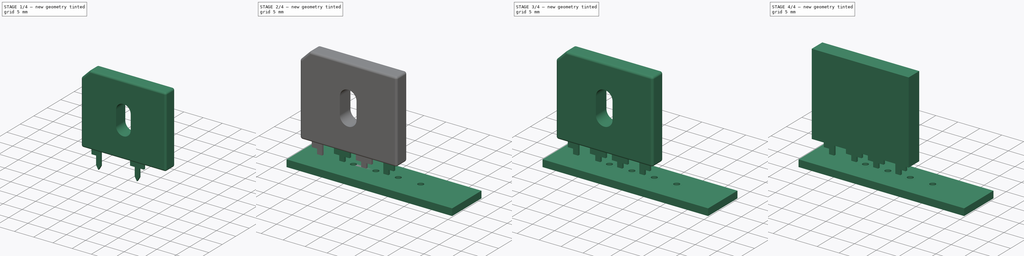
[diagram: build sequence overview — one tinted view per stage of 4, left to right]
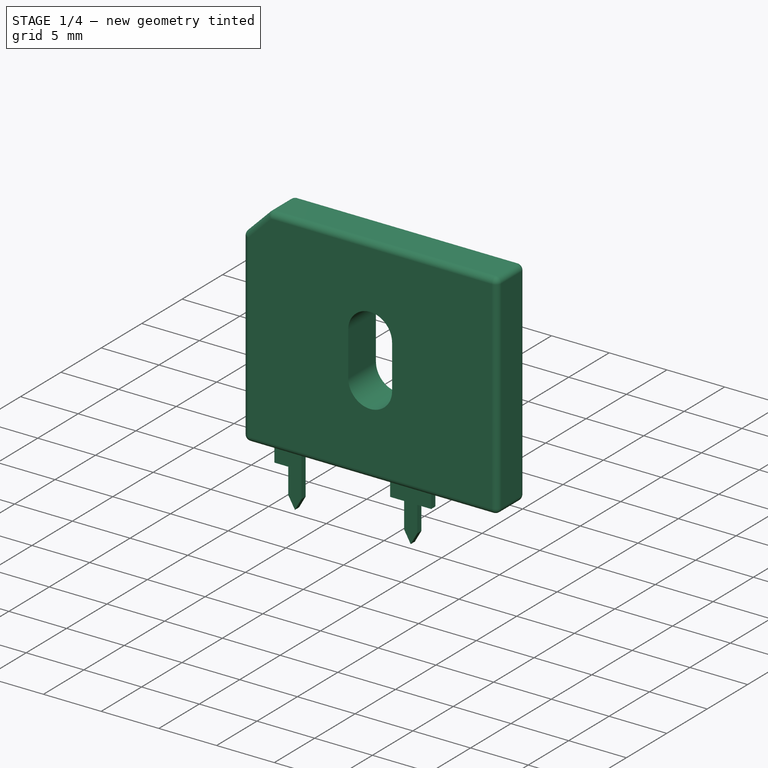
[diagram: stage 1 of 4 — iso view after this stage's code; geometry added in this stage tinted green]
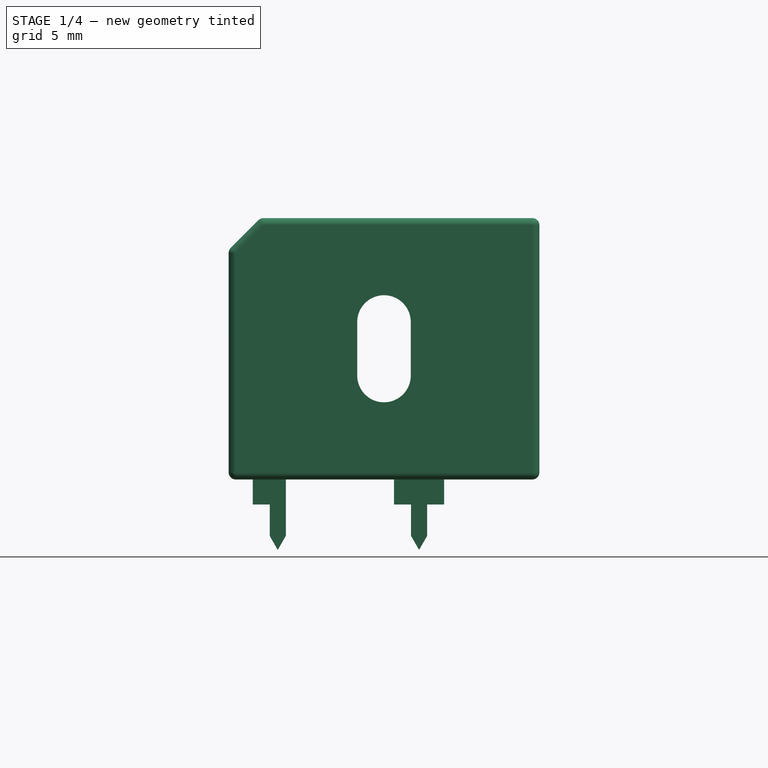
[diagram: stage 1 of 4 — front view after this stage's code; geometry added in this stage tinted green]
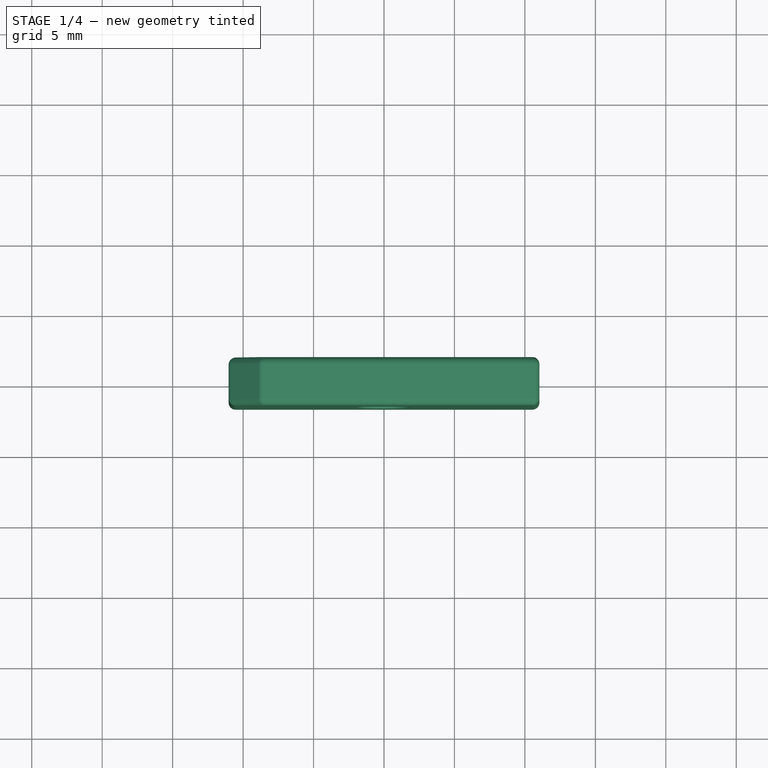
[diagram: stage 1 of 4 — top view after this stage's code; geometry added in this stage tinted green]
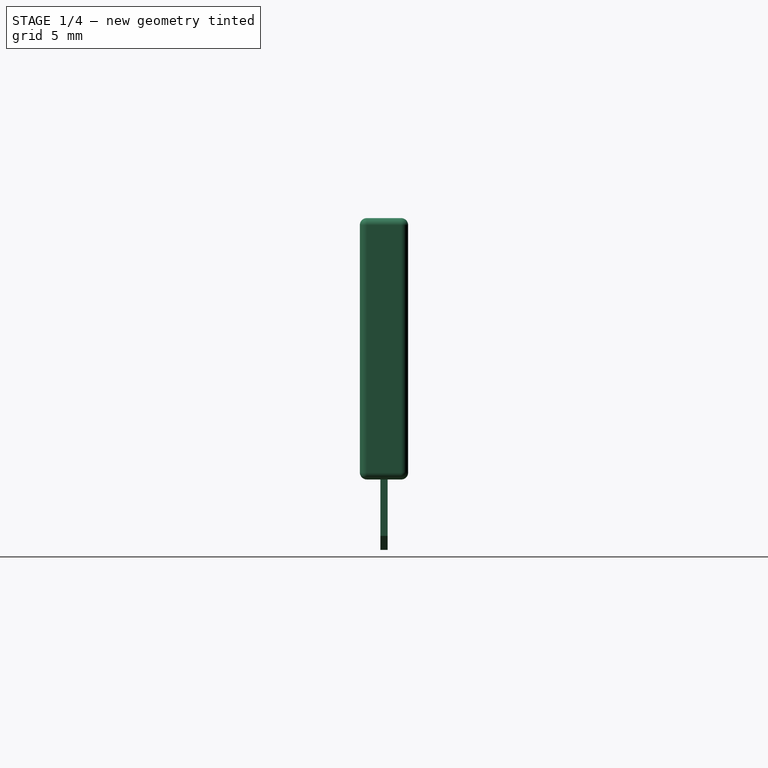
[diagram: stage 1 of 4 — right view after this stage's code; geometry added in this stage tinted green]
FCSTD DOCUMENT  (FreeCAD 0.16R6710 (Git))
Label: Diode_Bridge_18_5x5_5
License: All rights reserved
LicenseURL: http://en.wikipedia.org/wiki/All_rights_reserved
objects: Sketcher::SketchObject×5, Part::FeaturePython×5, PartDesign::Body×3, PartDesign::Pad×3, Part::Mirroring×2, PartDesign::Pocket×2, PartDesign::Fillet×2, App::DocumentObjectGroup×1, Part::MultiFuse×1, Part::Feature×1
note: 29 computed .brp shape members not serialized (recipe doc carries the construction recipe); baked Part::Feature solids carry a one-line shape summary decoded from their .brp

FEATURE [PartDesign::Body] Body
FEATURE [Sketcher::SketchObject] Sketch
  Placement = pos=(0,0,0) rot=(1,0,0;1.5708rad)
  sketch-geometry (9):
    g0: LineSegment StartX=8.1125 StartY=-1.1125 StartZ=0 EndX=8.1125 EndY=1.1125 EndZ=0
    g1: LineSegment StartX=8.1125 StartY=1.1125 StartZ=0 EndX=9.3175 EndY=1.1125 EndZ=0
    g2: LineSegment StartX=9.3175 StartY=1.1125 StartZ=0 EndX=9.3175 EndY=2.8875 EndZ=0
    g3: LineSegment StartX=9.3175 StartY=2.8875 StartZ=0 EndX=6.9675 EndY=2.8875 EndZ=0
    g4: LineSegment StartX=6.9675 StartY=2.8875 StartZ=0 EndX=6.9675 EndY=-1.1125 EndZ=0
    g5: LineSegment StartX=6.9675 StartY=-1.1125 StartZ=0 EndX=7.54 EndY=-2.1125 EndZ=0
    g6: LineSegment StartX=7.54 StartY=-2.1125 StartZ=0 EndX=8.1125 EndY=-1.1125 EndZ=0
    g7: LineSegment StartX=6.9675 StartY=-1.1125 StartZ=0 EndX=8.1125 EndY=-1.1125 EndZ=0
    g8: GeomPoint X=8.1125 Y=0 Z=0
  constraints (25):
    c: Vertical(g0)
    c: Coincident(g0,g1)
    c: Horizontal(g1)
    c: Coincident(g1,g2)
    c: Vertical(g2)
    c: Coincident(g2,g3)
    c: Horizontal(g3)
    c: Coincident(g3,g4)
    c: Vertical(g4)
    c: Coincident(g4,g5)
    c: Coincident(g6,g0)
    c: Horizontal(g7)
    c: DistanceX(g7,g7) = 1.145
    c: Equal(g5,g6)
    c: Coincident(g7,g0)
    c: DistanceY(g5,g4) = 1
    c: DistanceX(g3,g3) = 2.35
    c: Coincident(g4,g7)
    c: DistanceY(g2,g2) = 1.775
    c: DistanceY(g4,g4) = 4
    c: PointOnObject(g8,g0)
    c: Symmetric(g0,g0,g8)
    c: PointOnObject(g8,g-1)
    c: DistanceX(g-1,g5) = 7.54
    c: Coincident(g5,g6)
FEATURE [PartDesign::Body] Body001
FEATURE [PartDesign::Pad] Pad
  Length = 0.51
  Length2 = 100
  Midplane = true
  Placement = pos=(0,0,0) rot=(1,0,0;1.5708rad)
  Type = 0
FEATURE [Sketcher::SketchObject] Sketch001
  ExternalGeometry = -> [Sketch,Pad]
  Placement = pos=(0,0,0) rot=(1,0,0;1.5708rad)
  sketch-geometry (11):
    g0: LineSegment StartX=4.2675 StartY=1.1125 StartZ=0 EndX=4.2675 EndY=2.8875 EndZ=0
    g1: LineSegment StartX=4.2675 StartY=2.8875 StartZ=0 EndX=0.7125 EndY=2.8875 EndZ=0
    g2: LineSegment StartX=0.7125 StartY=2.8875 StartZ=0 EndX=0.7125 EndY=1.1125 EndZ=0
    g3: LineSegment StartX=0.7125 StartY=1.1125 StartZ=0 EndX=1.9175 EndY=1.1125 EndZ=0
    g4: LineSegment StartX=1.9175 StartY=1.1125 StartZ=0 EndX=1.9175 EndY=-1.1125 EndZ=0
    g5: LineSegment StartX=3.0625 StartY=-1.1125 StartZ=0 EndX=3.0625 EndY=1.1125 EndZ=0
    g6: LineSegment StartX=3.0625 StartY=1.1125 StartZ=0 EndX=4.2675 EndY=1.1125 EndZ=0
    g7: LineSegment StartX=1.9175 StartY=-1.1125 StartZ=0 EndX=2.49 EndY=-2.1125 EndZ=0
    g8: LineSegment StartX=2.49 StartY=-2.1125 StartZ=0 EndX=3.0625 EndY=-1.1125 EndZ=0
    g9: LineSegment StartX=1.9175 StartY=-1.1125 StartZ=0 EndX=3.0625 EndY=-1.1125 EndZ=0
    g10: LineSegment [constr] StartX=2.49 StartY=-2.1125 StartZ=0 EndX=7.54 EndY=-2.1125 EndZ=0
  constraints (31):
    c: Vertical(g0)
    c: Coincident(g0,g1)
    c: Coincident(g1,g2)
    c: Vertical(g2)
    c: Coincident(g2,g3)
    c: Coincident(g3,g4)
    c: Vertical(g4)
    c: Equal(g2,g0)
    c: Horizontal(g3)
    c: Horizontal(g1)
    c: Vertical(g5)
    c: Coincident(g5,g6)
    c: Coincident(g6,g0)
    c: Horizontal(g6)
    c: Coincident(g4,g7)
    c: Coincident(g7,g8)
    c: Coincident(g8,g5)
    c: Equal(g-8,g6)
    c: Equal(g-9,g0)
    c: Equal(g6,g3)
    c: Equal(g5,g-5)
    c: Equal(g5,g4)
    c: Equal(g-7,g8)
    c: Equal(g8,g7)
    c: Coincident(g9,g4)
    c: Coincident(g9,g5)
    c: Equal(g9,g-6)
    c: Coincident(g10,g7)
    c: Coincident(g10,g-7)
    c: DistanceX(g10,g10) = 5.05
    c: Horizontal(g10)
FEATURE [PartDesign::Pad] Pad001
  Length = 0.51
  Length2 = 100
  Midplane = true
  Placement = pos=(0,0,0) rot=(1,0,0;1.5708rad)
  Type = 0
FEATURE [Part::Mirroring] Part__Mirroring001  label="Pad (Mirror #2)"
  Base = (0,0,0)
  Normal = (1,0,0)
  Source = -> Pad
FEATURE [Sketcher::SketchObject] Sketch004
  ExternalGeometry = -> [Fillet001]
  Placement = pos=(0,-1.715,0) rot=(1,0,0;1.5708rad)
  sketch-geometry (6):
    g0: ArcOfCircle CenterX=0 CenterY=14.0625 CenterZ=0 NormalX=0 NormalY=0 NormalZ=1 Radius=1.9 StartAngle=0 EndAngle=3.14159
    g1: ArcOfCircle CenterX=0 CenterY=10.2625 CenterZ=0 NormalX=0 NormalY=0 NormalZ=1 Radius=1.9 StartAngle=3.14159 EndAngle=6.28319
    g2: LineSegment StartX=-1.9 StartY=14.0625 StartZ=0 EndX=-1.9 EndY=10.2625 EndZ=0
    g3: LineSegment StartX=1.9 StartY=14.0625 StartZ=0 EndX=1.9 EndY=10.2625 EndZ=0
    g4: LineSegment [constr] StartX=0 StartY=14.0625 StartZ=0 EndX=0 EndY=10.2625 EndZ=0
    g5: LineSegment [constr] StartX=0 StartY=12.1625 StartZ=0 EndX=10.525 EndY=12.1625 EndZ=0
  constraints (16):
    c: Tangent(g0,g3) = 1.5708
    c: Tangent(g0,g2) = -1.5708
    c: Tangent(g2,g1) = -1.5708
    c: Tangent(g3,g1) = 1.5708
    c: Vertical(g2)
    c: Equal(g0,g1)
    c: Radius(g1) = 1.9
    c: DistanceY(g1,g0) = 3.8
    c: PointOnObject(g0,g-2)
    c: Coincident(g4,g0)
    c: Coincident(g4,g1)
    c: PointOnObject(g5,g4)
    c: PointOnObject(g5,g-3)
    c: Horizontal(g5)
    c: Symmetric(g-3,g-3,g5)
    c: Symmetric(g4,g4,g5)
FEATURE [PartDesign::Pocket] Pocket001
  Length = 5
  Placement = pos=(0,0,0) rot=(1,0,0;1.5708rad)
  Type = 1
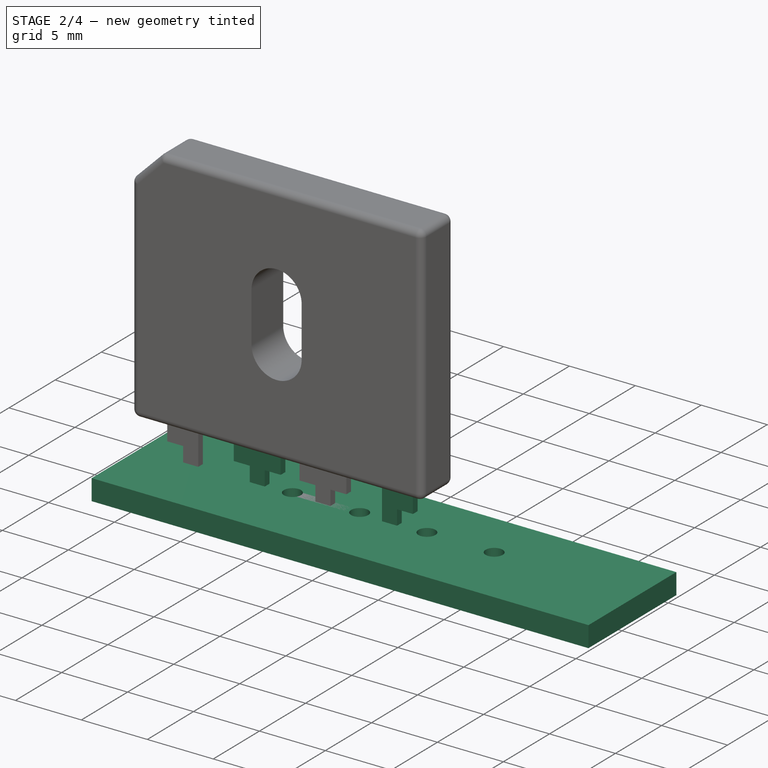
[diagram: stage 2 of 4 — iso view after this stage's code; geometry added in this stage tinted green]
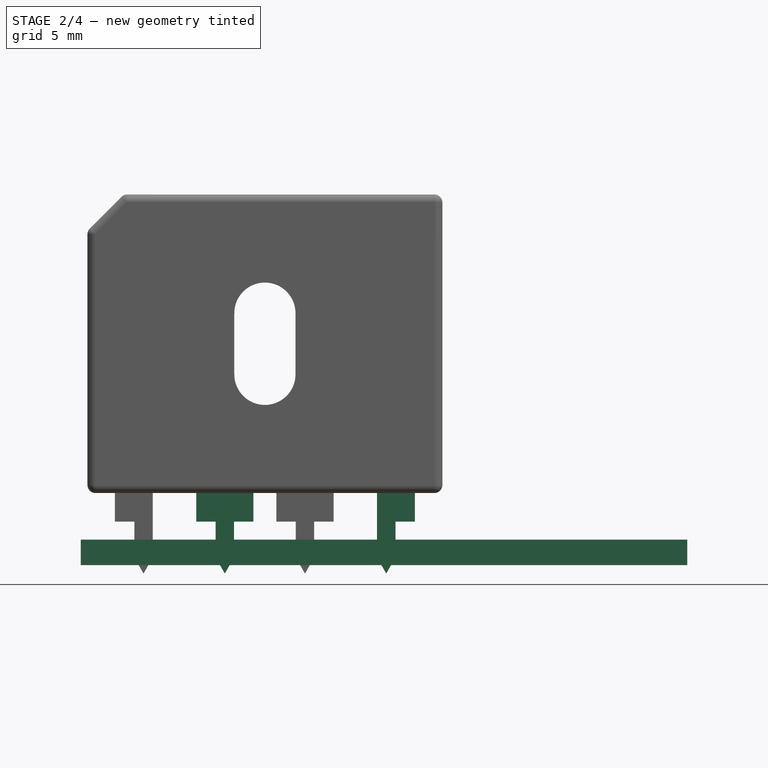
[diagram: stage 2 of 4 — front view after this stage's code; geometry added in this stage tinted green]
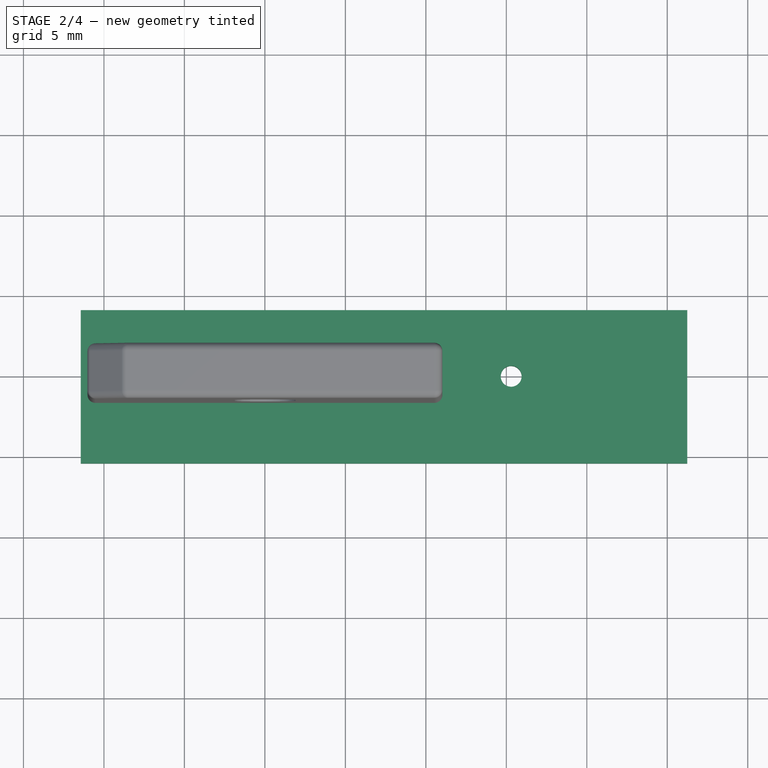
[diagram: stage 2 of 4 — top view after this stage's code; geometry added in this stage tinted green]
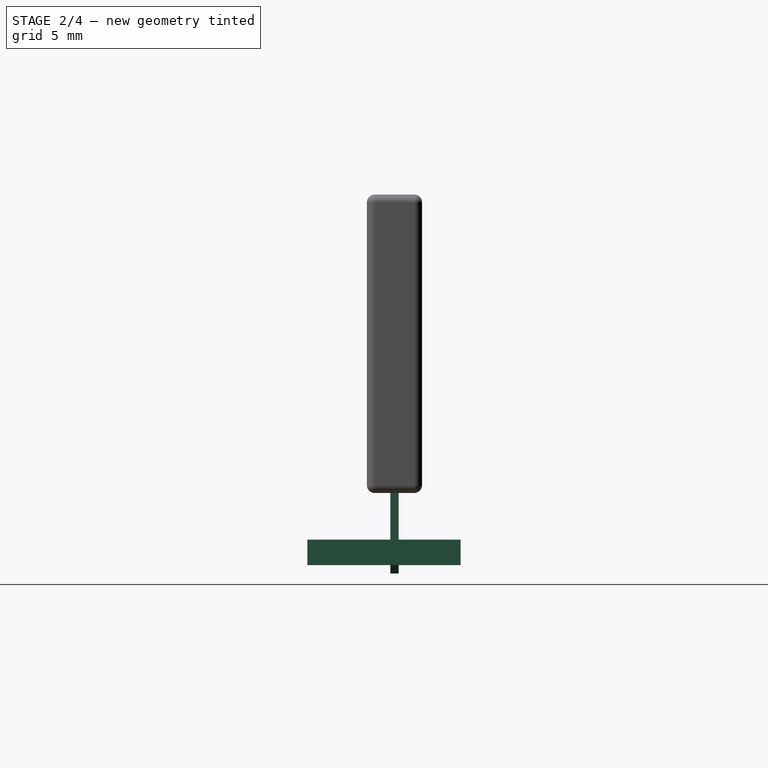
[diagram: stage 2 of 4 — right view after this stage's code; geometry added in this stage tinted green]
FEATURE [Part::Mirroring] Part__Mirroring  label="Pad001 (Mirror #1)"
  Base = (0,0,0)
  Normal = (1,0,-1.19209e-07)
  Source = -> Pad001
FEATURE [Part::FeaturePython] newPCB  label="Pcb"  # a2plus imported part (geometry in sourceFile) (typed FeaturePython)
  fixedPosition = true
FEATURE [App::DocumentObjectGroup] Diode_Bridge_18_5x5_5_fp
  Group = -> [Filk_lines,TopPads,BotPads,THPs,newPCB]
FEATURE [Part::MultiFuse] Pad_mp_cp  label="Pad_fd"
  Shapes = -> [Pad,Part__Mirroring001,Part__Mirroring,Pocket001,Pad001]
FEATURE [Part::Feature] Shape001  label="Diode_Bridge_18_5x5_5"
  shape: bbox 22.05 x 3.43 x 23.55 mm, 72 faces (baked)
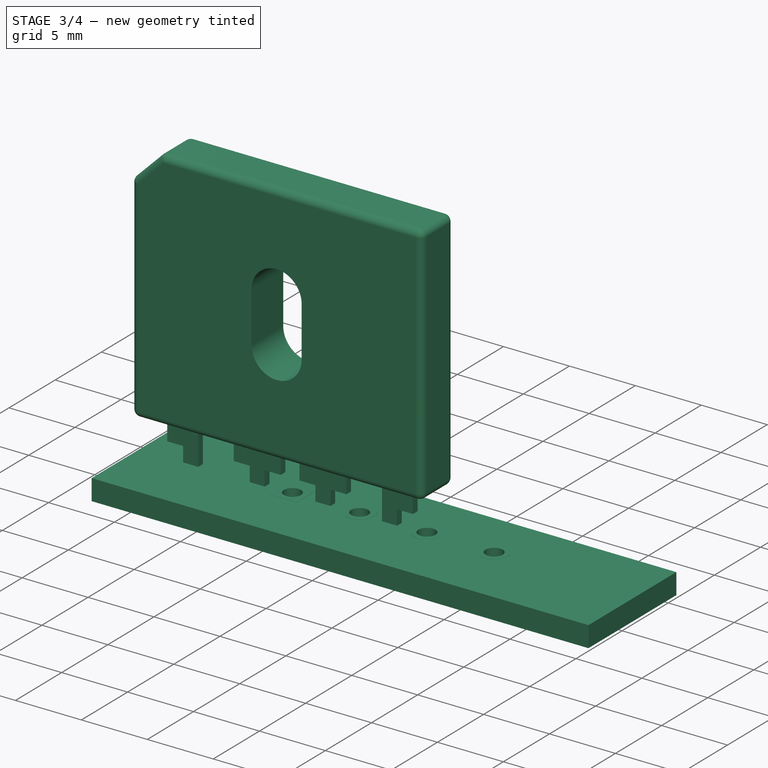
[diagram: stage 3 of 4 — iso view after this stage's code; geometry added in this stage tinted green]
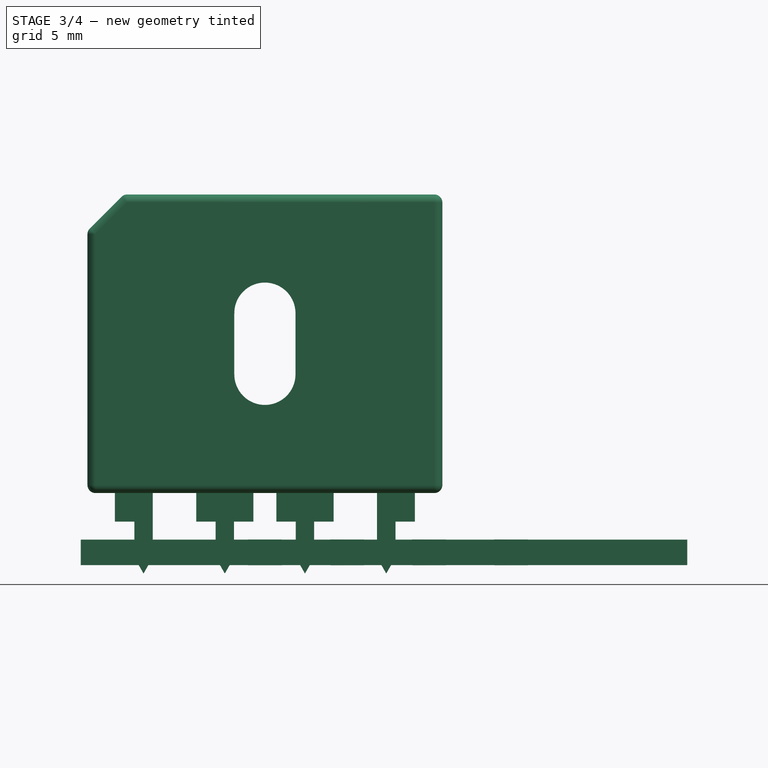
[diagram: stage 3 of 4 — front view after this stage's code; geometry added in this stage tinted green]
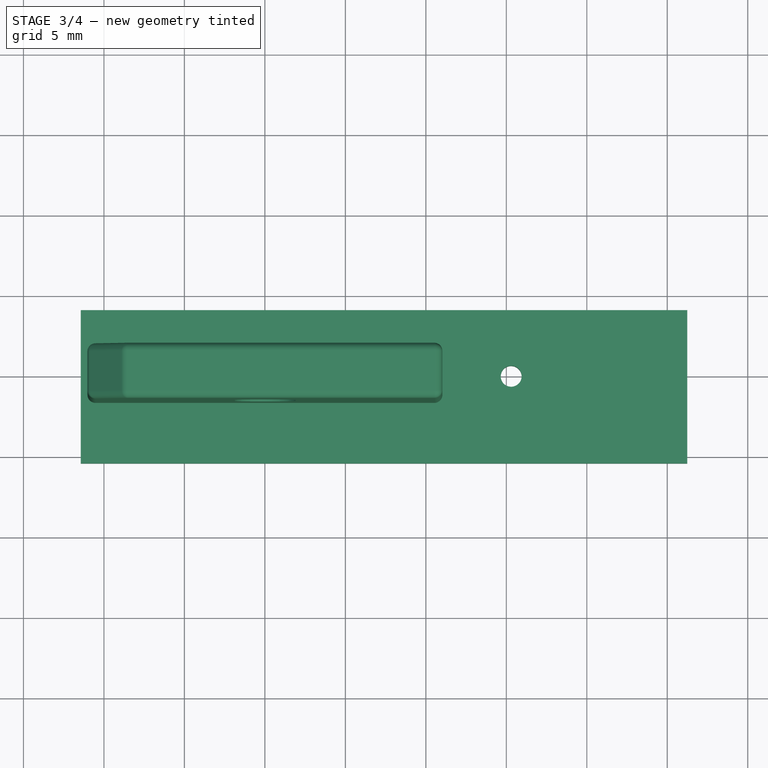
[diagram: stage 3 of 4 — top view after this stage's code; geometry added in this stage tinted green]
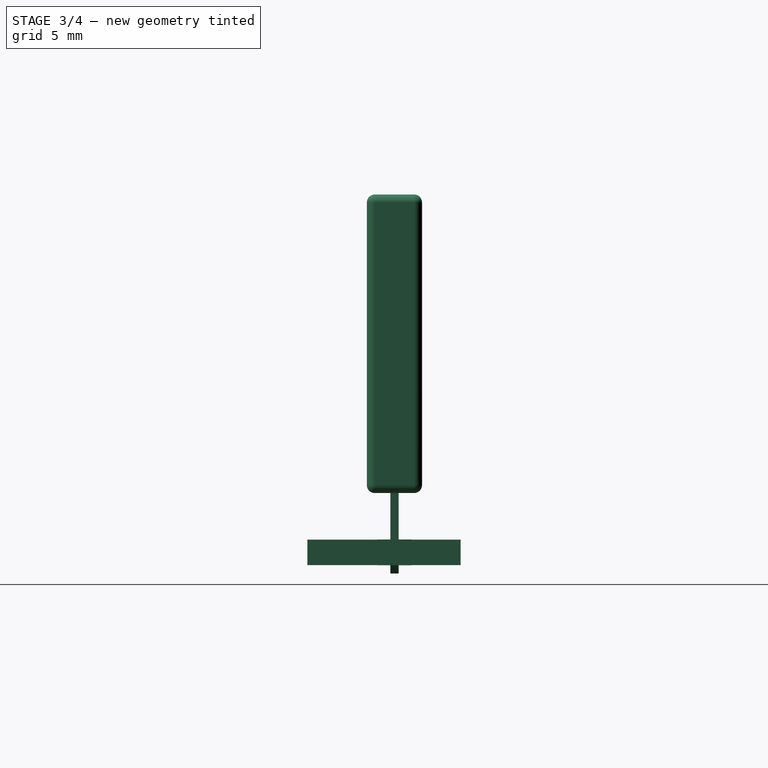
[diagram: stage 3 of 4 — right view after this stage's code; geometry added in this stage tinted green]
FEATURE [Part::FeaturePython] Filk_lines  label="FrontSilk"  # a2plus imported part (geometry in sourceFile) (typed FeaturePython)
  fixedPosition = true
FEATURE [Part::FeaturePython] TopPads  # a2plus imported part (geometry in sourceFile) (typed FeaturePython)
  fixedPosition = true
FEATURE [Part::FeaturePython] BotPads  # a2plus imported part (geometry in sourceFile) (typed FeaturePython)
  fixedPosition = true
FEATURE [Part::FeaturePython] THPs  label="PTHs"  # a2plus imported part (geometry in sourceFile) (typed FeaturePython)
  fixedPosition = true
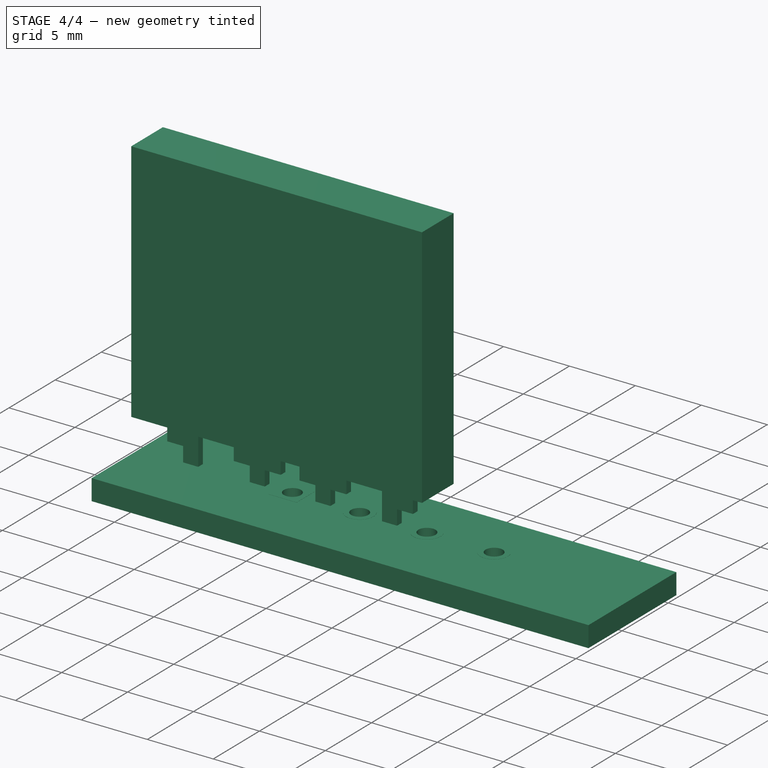
[diagram: stage 4 of 4 — iso view after this stage's code; geometry added in this stage tinted green]
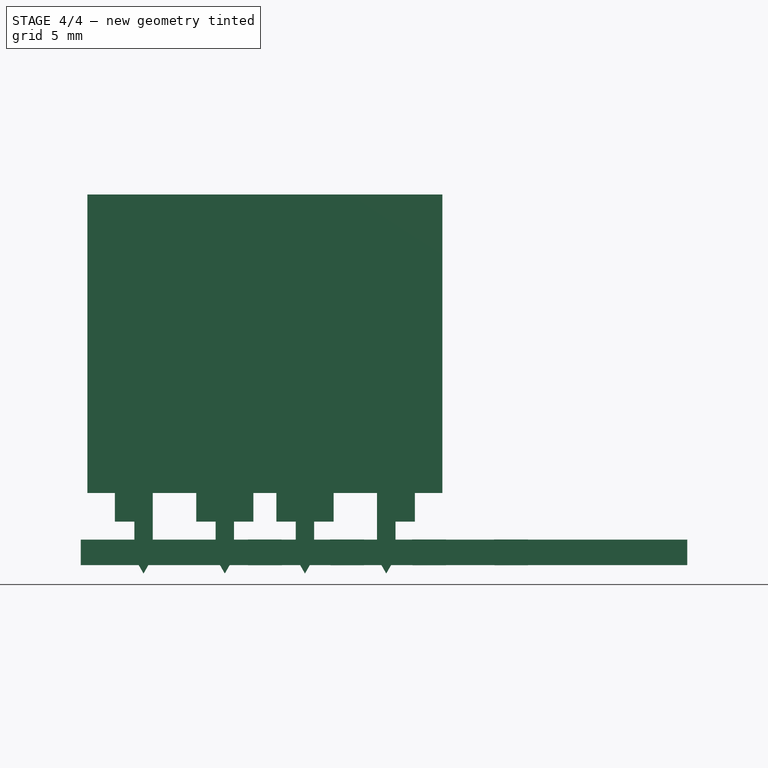
[diagram: stage 4 of 4 — front view after this stage's code; geometry added in this stage tinted green]
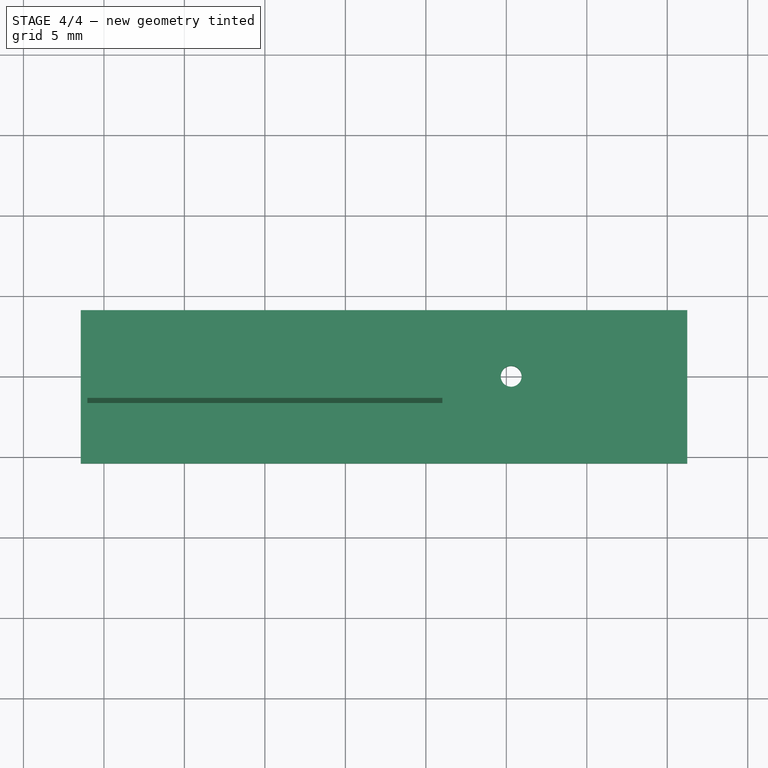
[diagram: stage 4 of 4 — top view after this stage's code; geometry added in this stage tinted green]
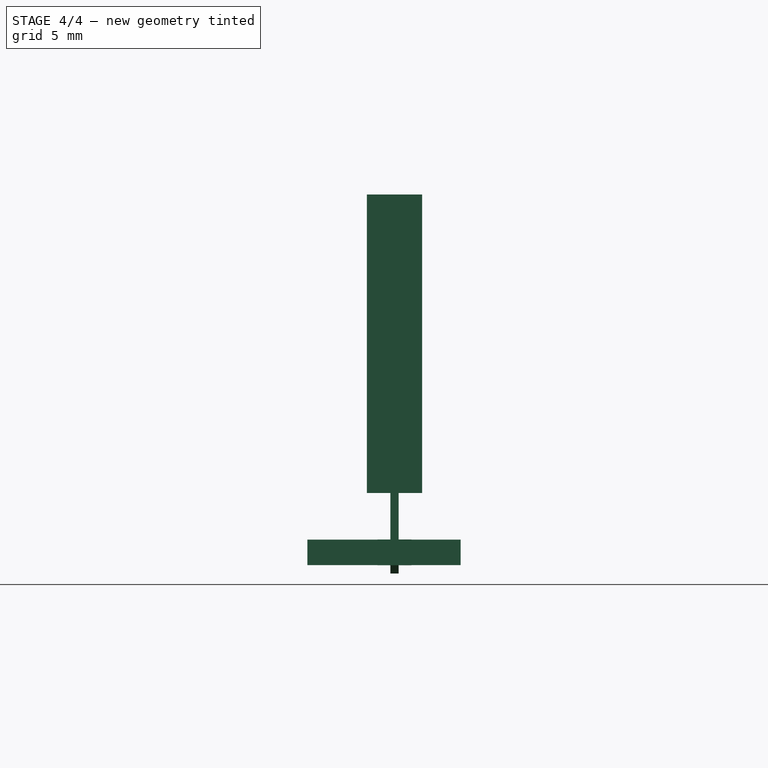
[diagram: stage 4 of 4 — right view after this stage's code; geometry added in this stage tinted green]
FEATURE [PartDesign::Body] Body002
FEATURE [Sketcher::SketchObject] Sketch002
  ExternalGeometry = -> [Part__Mirroring001]
  Placement = pos=(0,0,0) rot=(1,0,0;1.5708rad)
  sketch-geometry (4):
    g0: LineSegment StartX=-11.025 StartY=2.8875 StartZ=0 EndX=11.025 EndY=2.8875 EndZ=0
    g1: LineSegment StartX=11.025 StartY=2.8875 StartZ=0 EndX=11.025 EndY=21.4375 EndZ=0
    g2: LineSegment StartX=11.025 StartY=21.4375 StartZ=0 EndX=-11.025 EndY=21.4375 EndZ=0
    g3: LineSegment StartX=-11.025 StartY=21.4375 StartZ=0 EndX=-11.025 EndY=2.8875 EndZ=0
  constraints (12):
    c: Coincident(g0,g1)
    c: Coincident(g1,g2)
    c: Coincident(g2,g3)
    c: Coincident(g3,g0)
    c: Horizontal(g0)
    c: Horizontal(g2)
    c: Vertical(g1)
    c: Vertical(g3)
    c: PointOnObject(g-3,g0)
    c: Symmetric(g0,g0,g-2)
    c: DistanceX(g2,g2) = 22.05
    c: DistanceY(g1,g1) = 18.55
FEATURE [PartDesign::Pad] Pad002
  Length = 3.43
  Length2 = 100
  Midplane = true
  Placement = pos=(0,0,0) rot=(1,0,0;1.5708rad)
  Type = 0
FEATURE [Sketcher::SketchObject] Sketch003
  ExternalGeometry = -> [Pad002]
  Placement = pos=(0,-1.715,0) rot=(1,0,0;1.5708rad)
  sketch-geometry (3):
    g0: LineSegment StartX=-11.025 StartY=19.1748 StartZ=0 EndX=-8.76226 EndY=21.4375 EndZ=0
    g1: LineSegment StartX=-8.76226 StartY=21.4375 StartZ=0 EndX=-11.025 EndY=21.4375 EndZ=0
    g2: LineSegment StartX=-11.025 StartY=21.4375 StartZ=0 EndX=-11.025 EndY=19.1748 EndZ=0
  constraints (8):
    c: PointOnObject(g0,g-3)
    c: Coincident(g0,g1)
    c: Coincident(g1,g-4)
    c: Coincident(g1,g2)
    c: Coincident(g2,g0)
    c: PointOnObject(g0,g-4)
    c: Equal(g2,g1)
    c: Distance(g0) = 3.2
FEATURE [PartDesign::Pocket] Pocket
  Length = 5
  Placement = pos=(0,0,0) rot=(1,0,0;1.5708rad)
  Type = 1
FEATURE [PartDesign::Fillet] Fillet
  Base = -> Pocket [Edge15,Edge8,Edge1,Edge5,Edge2]
  Placement = pos=(0,0,0) rot=(1,0,0;1.5708rad)
  Radius = 0.5
FEATURE [PartDesign::Fillet] Fillet001
  Base = -> Fillet [Face10]
  Placement = pos=(0,0,0) rot=(1,0,0;1.5708rad)
  Radius = 0.5
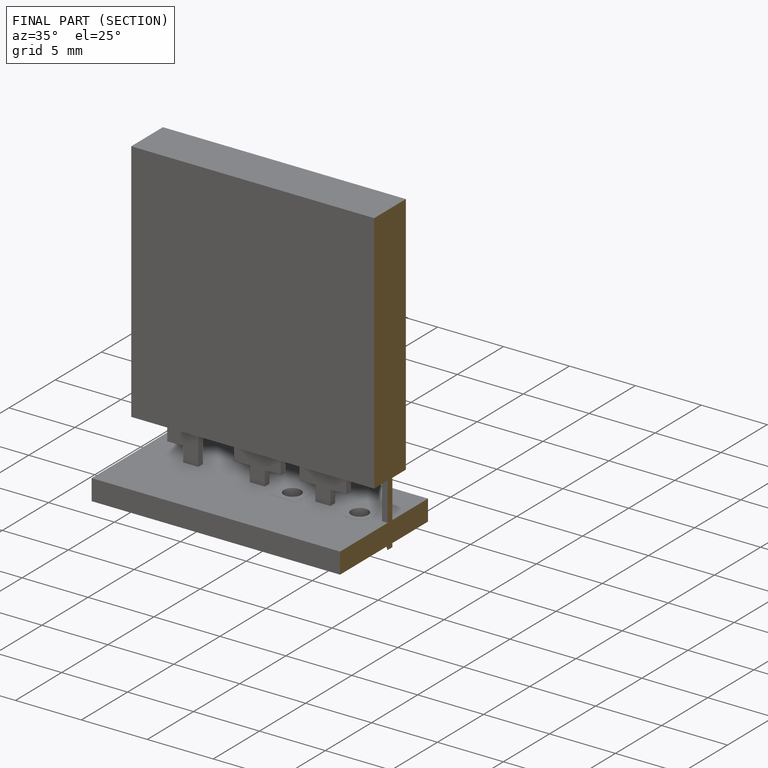
[diagram: finished part — half-section view (interior)]
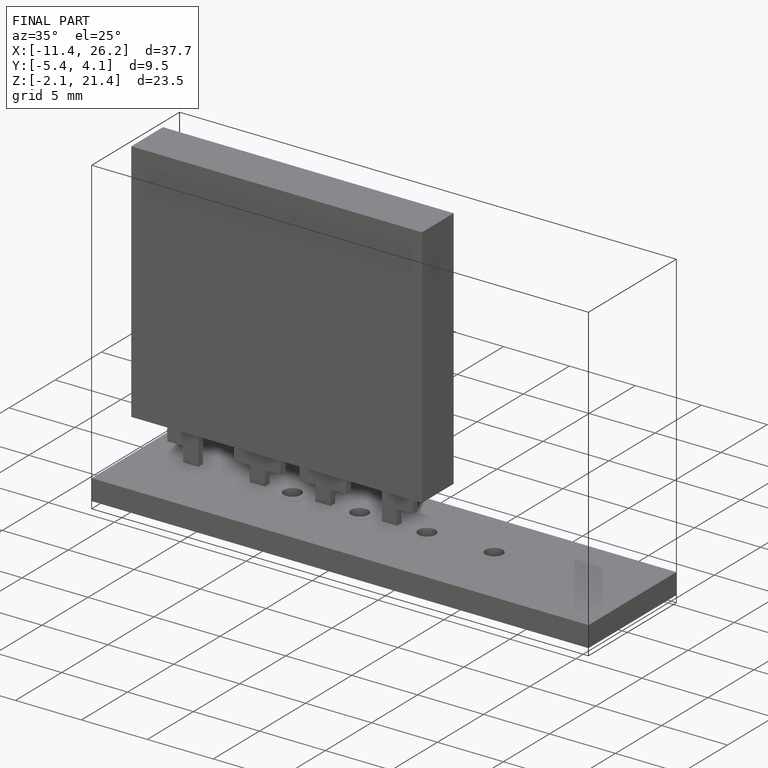
[diagram: finished part — iso view with bounding-box wireframe]
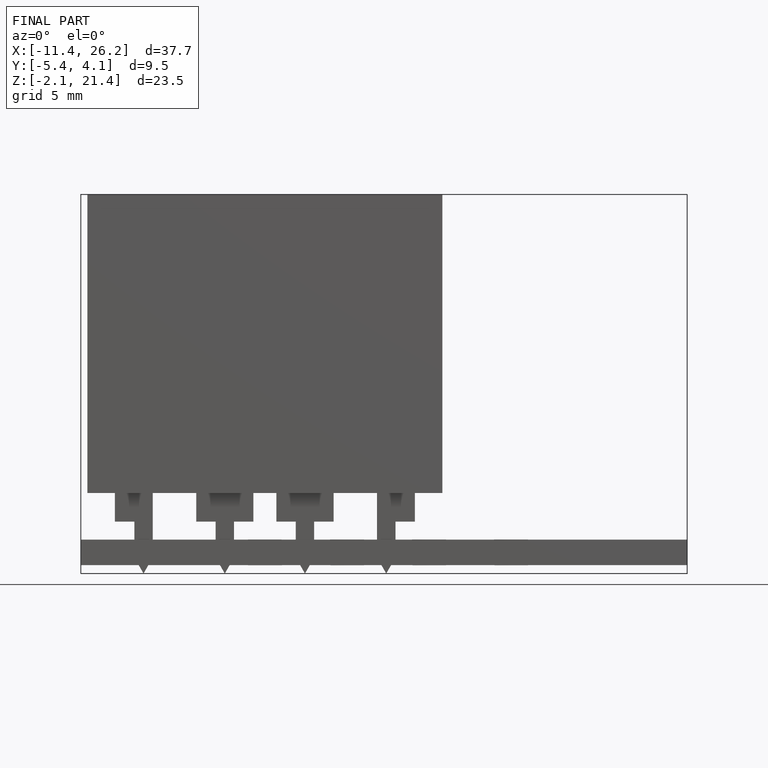
[diagram: finished part — front view with bounding-box wireframe]
